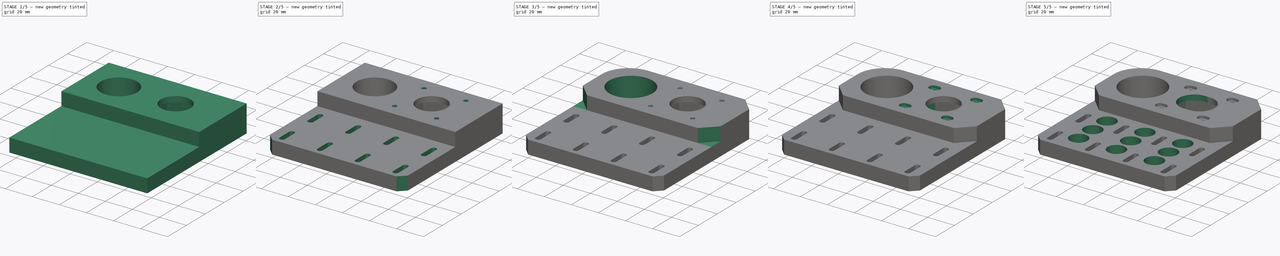
[diagram: build sequence overview — one tinted view per stage of 5, left to right]
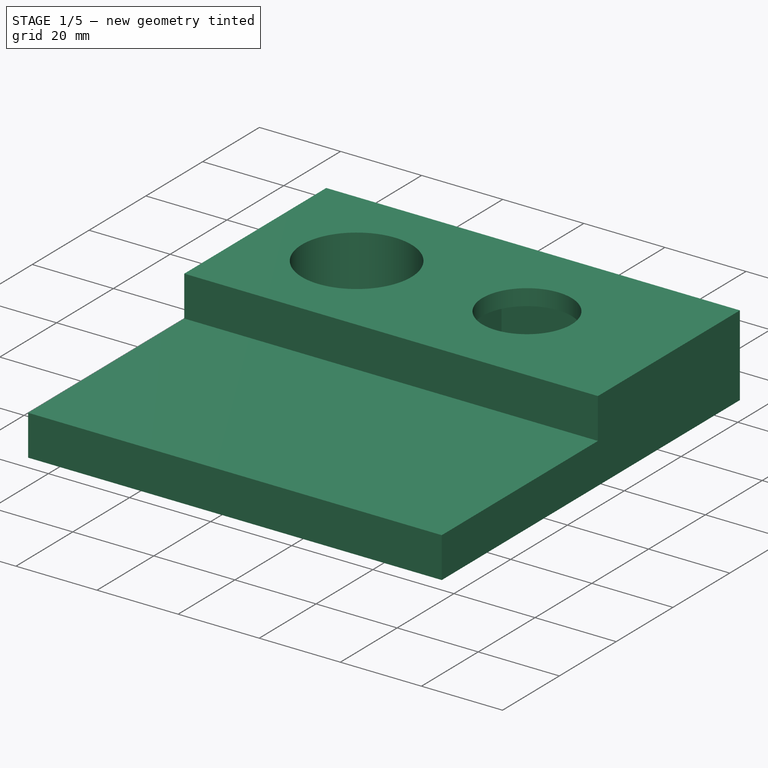
[diagram: stage 1 of 5 — iso view after this stage's code; geometry added in this stage tinted green]
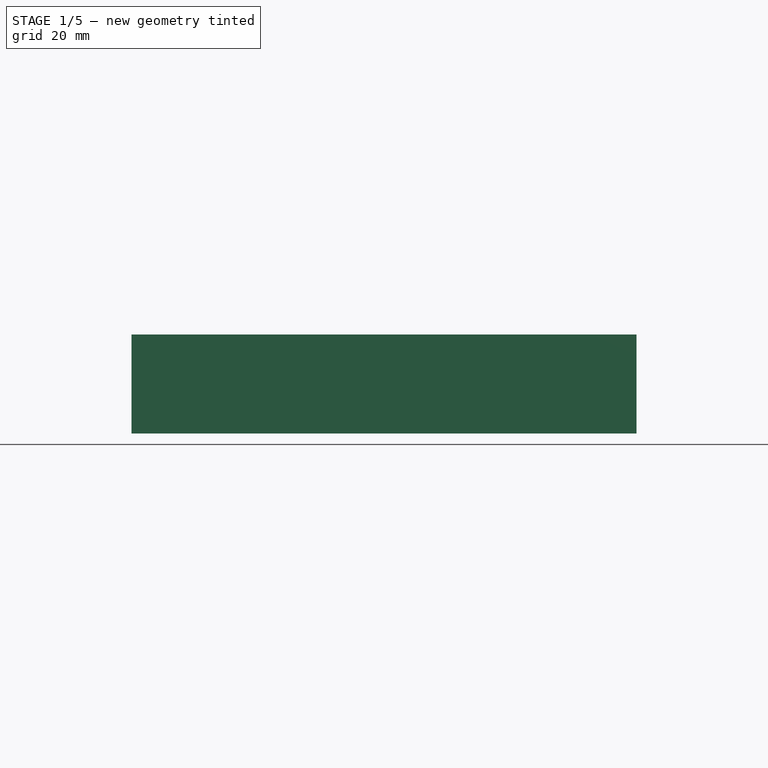
[diagram: stage 1 of 5 — front view after this stage's code; geometry added in this stage tinted green]
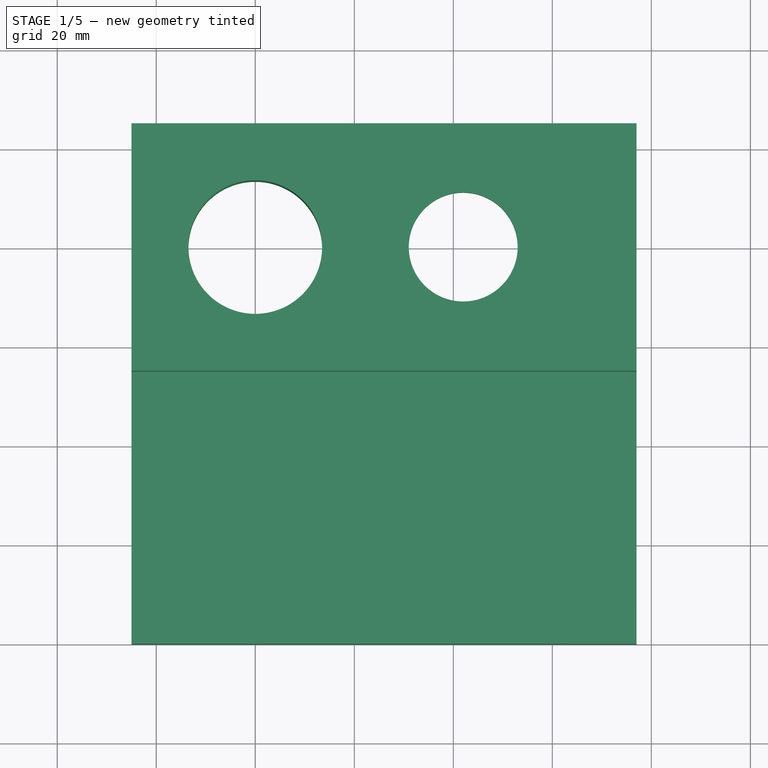
[diagram: stage 1 of 5 — top view after this stage's code; geometry added in this stage tinted green]
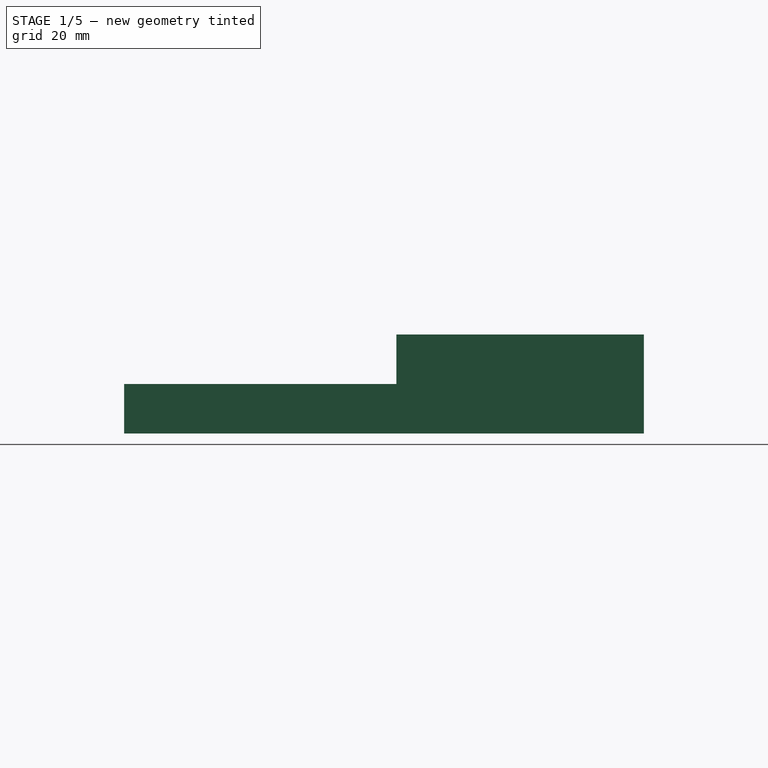
[diagram: stage 1 of 5 — right view after this stage's code; geometry added in this stage tinted green]
FCSTD DOCUMENT  (FreeCAD 2020.12.13R23076 +3015 (Git))
Label: plytaprzekladni
License: All rights reserved
LicenseURL: http://en.wikipedia.org/wiki/All_rights_reserved
objects: Sketcher::SketchObject×12, PartDesign::Pocket×11, PartDesign::LinearPattern×4, PartDesign::MultiTransform×2, PartDesign::Chamfer×2, PartDesign::Pad×1, PartDesign::Fillet×1, PartDesign::Body×1
note: 70 computed .brp shape members not serialized (recipe doc carries the construction recipe); baked Part::Feature solids carry a one-line shape summary decoded from their .brp

FEATURE [Sketcher::SketchObject] Sketch
  MapMode = 5
  Support = -> [XY_Plane]
  sketch-geometry (7):
    g0: LineSegment StartX=-65 StartY=-80 StartZ=0 EndX=37 EndY=-80 EndZ=0
    g1: LineSegment StartX=37 StartY=-80 StartZ=0 EndX=37 EndY=25 EndZ=0
    g2: LineSegment StartX=37 StartY=25 StartZ=0 EndX=-65 EndY=25 EndZ=0
    g3: LineSegment StartX=-65 StartY=25 StartZ=0 EndX=-65 EndY=-80 EndZ=0
    g4: Circle CenterX=2 CenterY=0 CenterZ=0 NormalX=0 NormalY=0 NormalZ=1 AngleXU=0 Radius=11
    g5: Circle CenterX=-40 CenterY=-4e-15 CenterZ=0 NormalX=0 NormalY=0 NormalZ=1 AngleXU=0 Radius=13.5
    g6: LineSegment [constr] StartX=2 StartY=0 StartZ=0 EndX=-40 EndY=-4e-15 EndZ=0
  constraints (20):
    c: Coincident(g0,g1)
    c: Coincident(g1,g2)
    c: Coincident(g2,g3)
    c: Coincident(g3,g0)
    c: Horizontal(g0)
    c: Horizontal(g2)
    c: Vertical(g1)
    c: Vertical(g3)
    c: DistanceX(g0) = -65
    c: DistanceY(g0) = -80
    c: DistanceY(g3,g3) = 105
    c: DistanceX(g2,g2) = 102
    c: Diameter(g4) = 22
    c: Coincident(g6,g4)
    c: Coincident(g6,g5)
    c: Diameter(g5) = 27
    c: Angle(g-1,g6) = 3.14159
    c: DistanceX(g5) = -40
    c: DistanceX(g4) = 2
    c: PointOnObject(g4,g-1)
FEATURE [PartDesign::Pad] Pad
  ClaimChildren = false
  Direction = (1,1,1)
  Fit = 0
  FitJoin = 0
  InnerFit = 0
  InnerFitJoin = 0
  InnerTaperAngle = 0
  InnerTaperAngleRev = 0
  Length = 20
  Length2 = 100
  NewSolid = false
  Profile = -> Sketch
  Suppress = false
  Type = 0
FEATURE [Sketcher::SketchObject] Sketch001
  ExternalGeometry = -> [Pad]
  MapMode = 5
  Placement = pos=(0,0,20) rot=(0,0,1;0rad)
  Support = -> [Pad]
  sketch-geometry (4):
    g0: LineSegment StartX=37 StartY=-80 StartZ=0 EndX=-65 EndY=-80 EndZ=0
    g1: LineSegment StartX=-65 StartY=-80 StartZ=0 EndX=-65 EndY=-25 EndZ=0
    g2: LineSegment StartX=-65 StartY=-25 StartZ=0 EndX=37 EndY=-25 EndZ=0
    g3: LineSegment StartX=37 StartY=-25 StartZ=0 EndX=37 EndY=-80 EndZ=0
  constraints (11):
    c: Coincident(g0,g1)
    c: Coincident(g1,g2)
    c: Coincident(g2,g3)
    c: Coincident(g3,g0)
    c: Horizontal(g0)
    c: Horizontal(g2)
    c: Vertical(g1)
    c: Vertical(g3)
    c: Coincident(g0,g-3)
    c: PointOnObject(g1,g-4)
    c: DistanceY(g2) = -25
FEATURE [PartDesign::Pocket] Pocket
  BaseFeature = -> Pad
  ClaimChildren = false
  Fit = 0
  FitJoin = 0
  InnerFit = 0
  InnerFitJoin = 0
  InnerTaperAngle = 0
  InnerTaperAngleRev = 0
  Length = 10
  Length2 = 100
  NewSolid = false
  Profile = -> Sketch001
  Suppress = false
  Type = 0
FEATURE [Sketcher::SketchObject] Sketch002
  MapMode = 5
  Placement = pos=(0,0,0) rot=(1,0,0;3.14159rad)
  Support = -> [Pocket]
  sketch-geometry (5):
    g0: LineSegment StartX=23 StartY=21 StartZ=0 EndX=-19 EndY=21 EndZ=0
    g1: LineSegment StartX=-19 StartY=21 StartZ=0 EndX=-19 EndY=-21 EndZ=0
    g2: LineSegment StartX=-19 StartY=-21 StartZ=0 EndX=23 EndY=-21 EndZ=0
    g3: LineSegment StartX=23 StartY=-21 StartZ=0 EndX=23 EndY=21 EndZ=0
    g4: Circle [constr] CenterX=2 CenterY=0 CenterZ=0 NormalX=0 NormalY=0 NormalZ=1 AngleXU=0 Radius=29.6985
  constraints (15):
    c: Coincident(g0,g1)
    c: Coincident(g1,g2)
    c: Coincident(g2,g3)
    c: Coincident(g3,g0)
    c: Equal(g0,g1)
    c: Equal(g0,g2)
    c: Equal(g0,g3)
    c: PointOnObject(g0,g4)
    c: PointOnObject(g1,g4)
    c: PointOnObject(g2,g4)
    c: PointOnObject(g3,g4)
    c: Horizontal(g0)
    c: DistanceX(g0,g0) = 42
    c: PointOnObject(g4,g-1)
    c: DistanceX(g-1,g4) = 2
FEATURE [PartDesign::Pocket] Pocket001
  BaseFeature = -> Pocket
  ClaimChildren = false
  Fit = 0
  FitJoin = 0
  InnerFit = 0
  InnerFitJoin = 0
  InnerTaperAngle = 0
  InnerTaperAngleRev = 0
  Length = 16
  Length2 = 100
  NewSolid = false
  Profile = -> Sketch002
  Suppress = false
  Type = 0
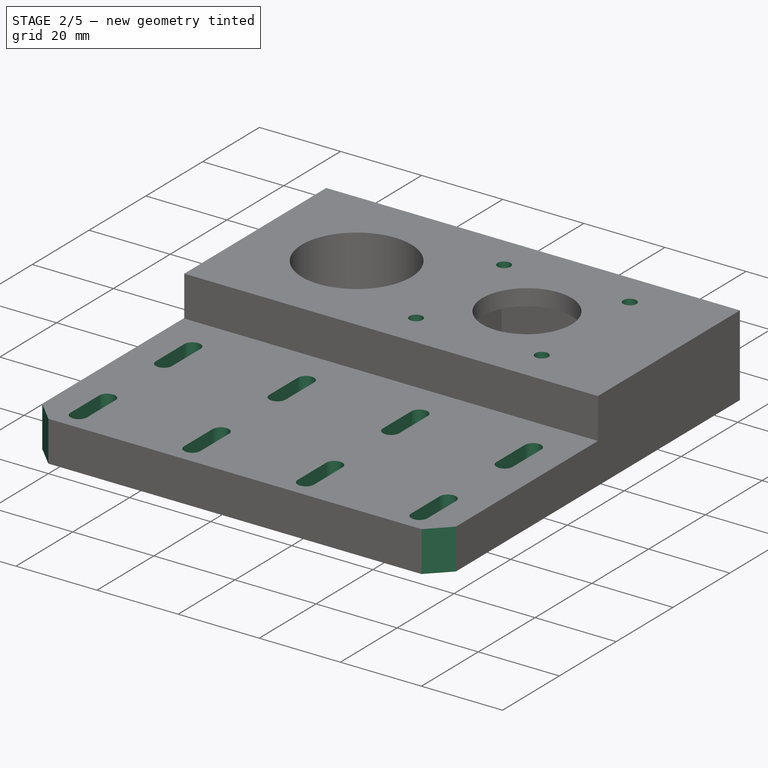
[diagram: stage 2 of 5 — iso view after this stage's code; geometry added in this stage tinted green]
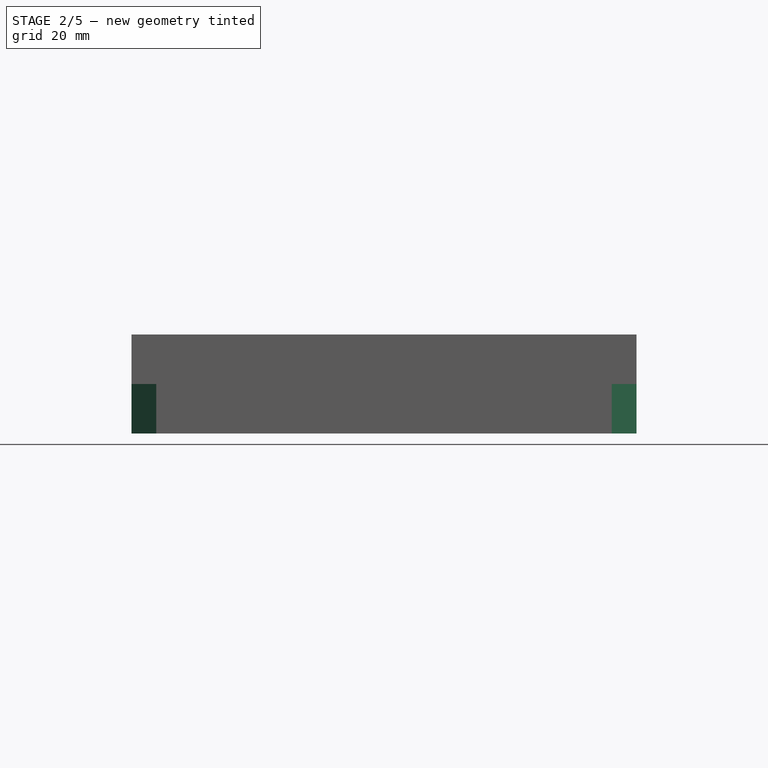
[diagram: stage 2 of 5 — front view after this stage's code; geometry added in this stage tinted green]
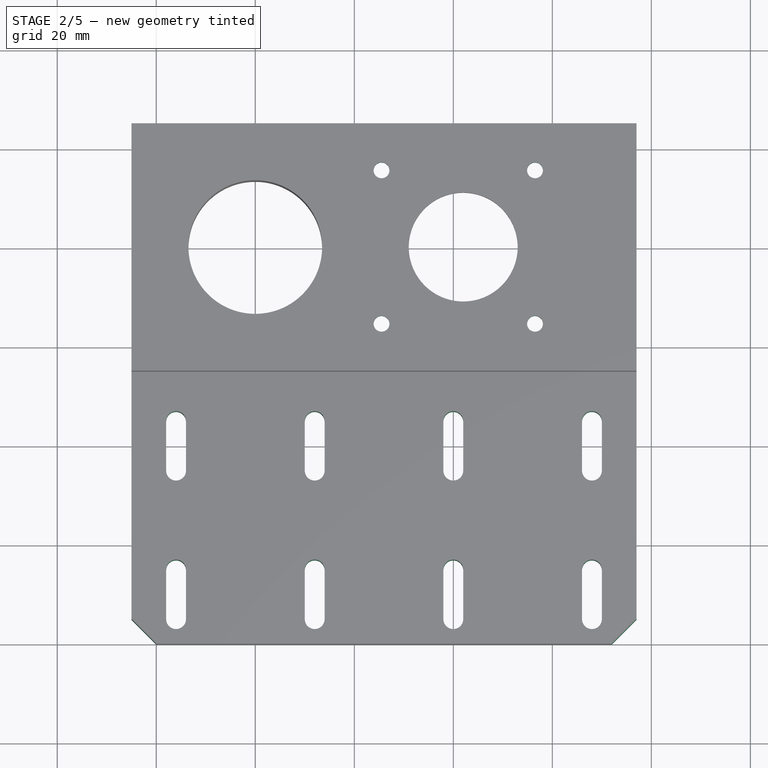
[diagram: stage 2 of 5 — top view after this stage's code; geometry added in this stage tinted green]
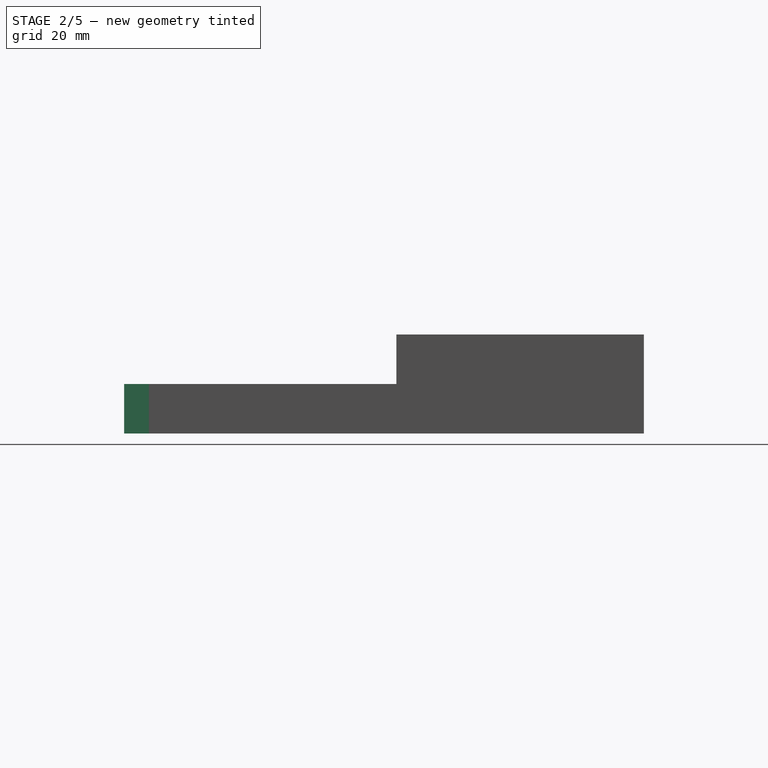
[diagram: stage 2 of 5 — right view after this stage's code; geometry added in this stage tinted green]
FEATURE [Sketcher::SketchObject] Sketch003
  MapMode = 5
  Placement = pos=(0,0,0) rot=(1,0,0;3.14159rad)
  Support = -> [Pocket001]
  sketch-geometry (4):
    g0: ArcOfCircle CenterX=28 CenterY=35 CenterZ=0 NormalX=0 NormalY=0 NormalZ=1 AngleXU=0 Radius=2 StartAngle=3.14159 EndAngle=6.28319
    g1: ArcOfCircle CenterX=28 CenterY=45 CenterZ=0 NormalX=0 NormalY=0 NormalZ=1 AngleXU=0 Radius=2 StartAngle=0 EndAngle=3.14159
    g2: LineSegment StartX=30 StartY=35 StartZ=0 EndX=30 EndY=45 EndZ=0
    g3: LineSegment StartX=26 StartY=35 StartZ=0 EndX=26 EndY=45 EndZ=0
  constraints (10):
    c: Tangent(g0,g3) = 1.5708
    c: Tangent(g0,g2) = -1.5708
    c: Tangent(g2,g1) = -1.5708
    c: Tangent(g3,g1) = 1.5708
    c: Vertical(g2)
    c: Equal(g0,g1)
    c: Radius(g0) = 2
    c: DistanceY(g2,g2) = 10
    c: DistanceX(g0) = 28
    c: DistanceY(g0) = 35
FEATURE [PartDesign::Pocket] Pocket002
  BaseFeature = -> Pocket001
  ClaimChildren = false
  Fit = 0
  FitJoin = 0
  InnerFit = 0
  InnerFitJoin = 0
  InnerTaperAngle = 0
  InnerTaperAngleRev = 0
  Length = 5
  Length2 = 100
  NewSolid = false
  Profile = -> Sketch003
  Suppress = false
  Type = 1
FEATURE [PartDesign::LinearPattern] LinearPattern
  CopyShape = false
  Direction = -> Sketch003 [H_Axis]
  Length = 84
  NewSolid = false
  Occurrences = 4
  Reversed = true
  SubTransform = true
  Suppress = false
FEATURE [PartDesign::LinearPattern] LinearPattern001
  CopyShape = false
  Direction = -> Sketch003 [V_Axis]
  Length = 30
  NewSolid = false
  Occurrences = 2
  SubTransform = true
  Suppress = false
FEATURE [PartDesign::MultiTransform] MultiTransform
  BaseFeature = -> Pocket002
  CopyShape = false
  NewSolid = false
  OriginalSubs = -> [Pocket002]
  Originals = -> [Pocket002]
  SubTransform = true
  Suppress = false
  Transformations = -> [LinearPattern,LinearPattern001]
FEATURE [Sketcher::SketchObject] Sketch004
  MapMode = 5
  Placement = pos=(0,0,16) rot=(1,0,0;3.14159rad)
  Support = -> [MultiTransform]
  sketch-geometry (4):
    g0: Circle CenterX=16.5 CenterY=15.5 CenterZ=0 NormalX=0 NormalY=0 NormalZ=1 AngleXU=0 Radius=1.6
    g1: Circle CenterX=16.5 CenterY=-15.5 CenterZ=0 NormalX=0 NormalY=0 NormalZ=1 AngleXU=0 Radius=1.6
    g2: Circle CenterX=-14.5 CenterY=-15.5 CenterZ=0 NormalX=0 NormalY=0 NormalZ=1 AngleXU=0 Radius=1.6
    g3: Circle CenterX=-14.5 CenterY=15.5 CenterZ=0 NormalX=0 NormalY=0 NormalZ=1 AngleXU=0 Radius=1.6
  constraints (11):
    c: Equal(g0,g3)
    c: Equal(g3,g1)
    c: Equal(g1,g2)
    c: Diameter(g1) = 3.2
    c: DistanceY(g1,g0) = 31
    c: Vertical(g2,g3)
    c: Horizontal(g3,g0)
    c: Horizontal(g2,g1)
    c: DistanceX(g1) = 16.5
    c: DistanceX(g2,g1) = 31
    c: Symmetric(g0,g1,g-1)
FEATURE [PartDesign::Pocket] Pocket003
  BaseFeature = -> MultiTransform
  ClaimChildren = false
  Fit = 0
  FitJoin = 0
  InnerFit = 0
  InnerFitJoin = 0
  InnerTaperAngle = 0
  InnerTaperAngleRev = 0
  Length = 5
  Length2 = 100
  NewSolid = false
  Profile = -> Sketch004
  Suppress = false
  Type = 1
FEATURE [PartDesign::Chamfer] Chamfer
  Angle = 45
  Base = -> Pocket003 [Edge4,Edge2]
  BaseFeature = -> Pocket003
  ChamferType = 0
  FlipDirection = false
  NewSolid = false
  Size = 5
  Size2 = 1
  SupportTransform = true
  Suppress = false
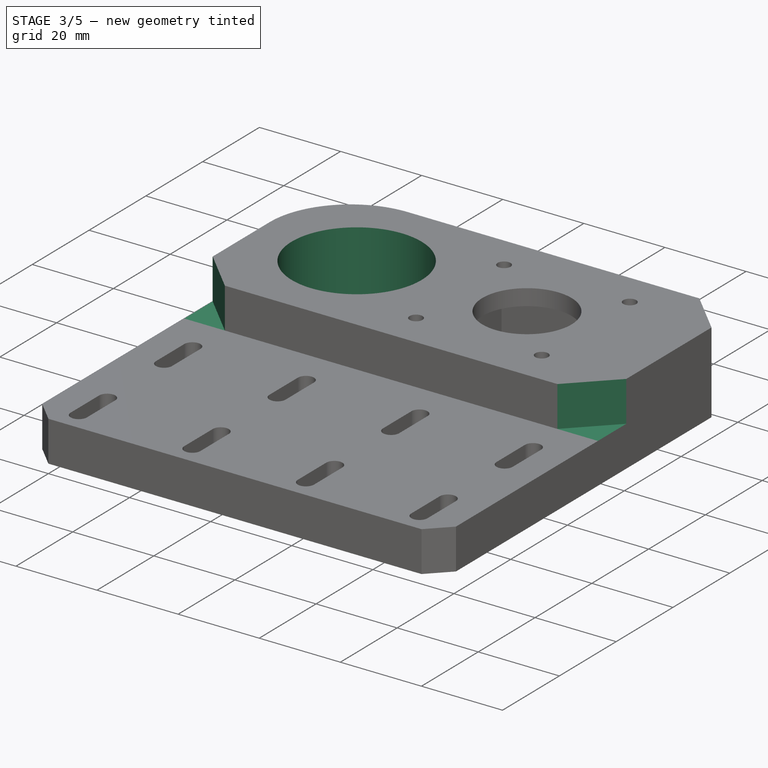
[diagram: stage 3 of 5 — iso view after this stage's code; geometry added in this stage tinted green]
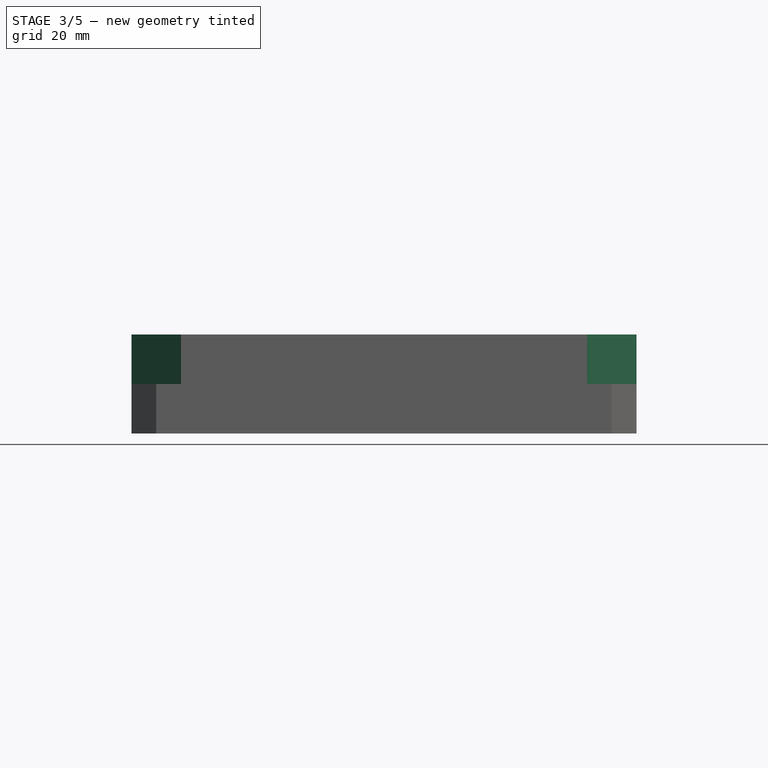
[diagram: stage 3 of 5 — front view after this stage's code; geometry added in this stage tinted green]
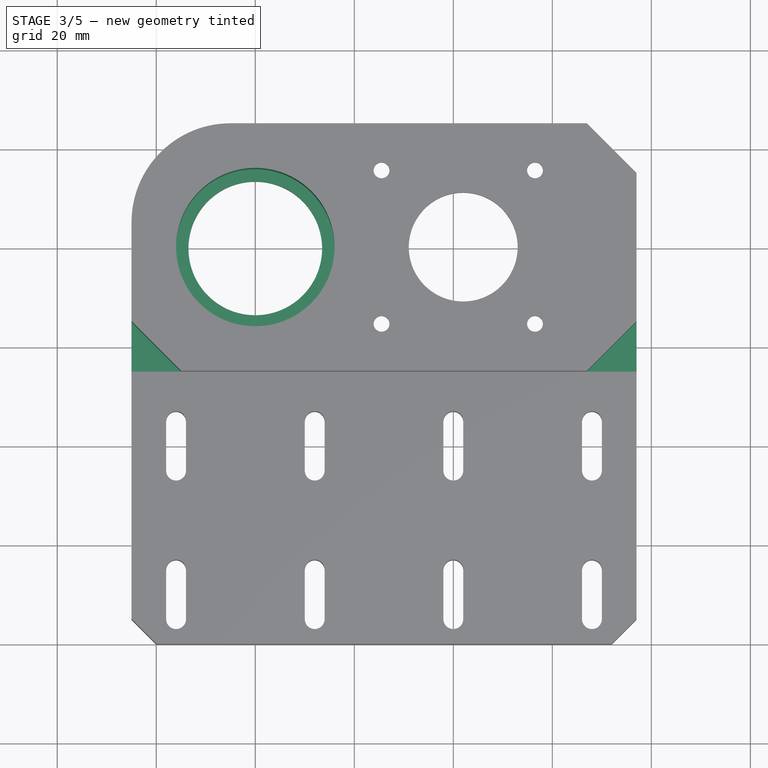
[diagram: stage 3 of 5 — top view after this stage's code; geometry added in this stage tinted green]
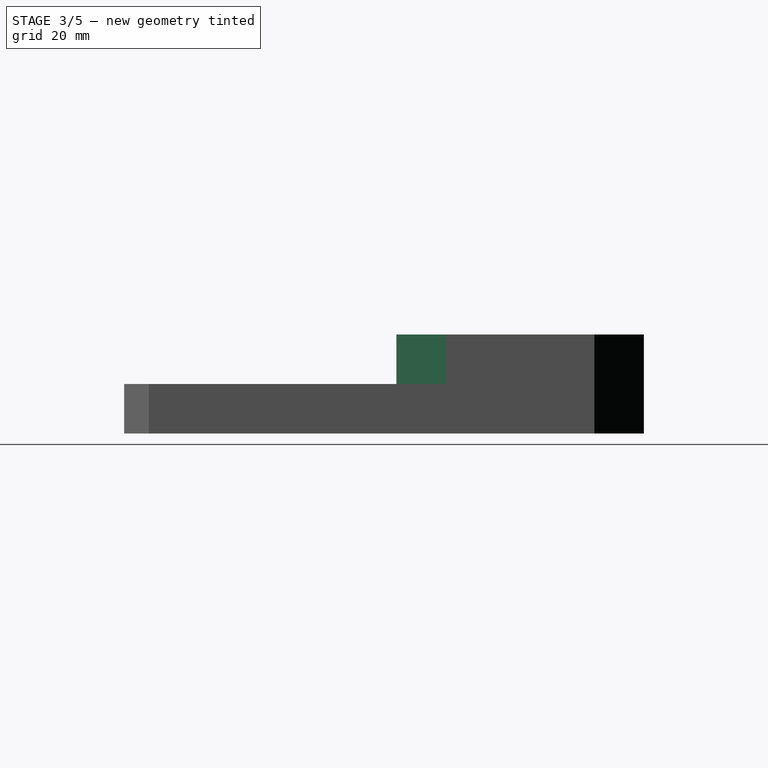
[diagram: stage 3 of 5 — right view after this stage's code; geometry added in this stage tinted green]
FEATURE [PartDesign::Chamfer] Chamfer001
  Angle = 45
  Base = -> Chamfer [Edge91,Edge89,Edge88]
  BaseFeature = -> Chamfer
  ChamferType = 0
  FlipDirection = false
  NewSolid = false
  Size = 10
  Size2 = 1
  SupportTransform = true
  Suppress = false
FEATURE [PartDesign::Fillet] Fillet
  Base = -> Chamfer001 [Edge55]
  BaseFeature = -> Chamfer001
  NewSolid = false
  Radius = 20
  SupportTransform = true
  Suppress = false
FEATURE [Sketcher::SketchObject] Sketch006
  ExternalGeometry = -> [Fillet]
  MapMode = 5
  Placement = pos=(0,0,20) rot=(0,0,1;0rad)
  Support = -> [Fillet]
  sketch-geometry (1):
    g0: Circle CenterX=-40 CenterY=-4.25258e-11 CenterZ=0 NormalX=0 NormalY=0 NormalZ=1 AngleXU=0 Radius=16
  constraints (2):
    c: Coincident(g0,g-3)
    c: Diameter(g0) = 32
FEATURE [PartDesign::Pocket] Pocket004
  BaseFeature = -> Fillet
  ClaimChildren = false
  Fit = 0
  FitJoin = 0
  InnerFit = 0
  InnerFitJoin = 0
  InnerTaperAngle = 0
  InnerTaperAngleRev = 0
  Length = 16
  Length2 = 100
  NewSolid = false
  Profile = -> Sketch006
  Suppress = false
  Type = 0
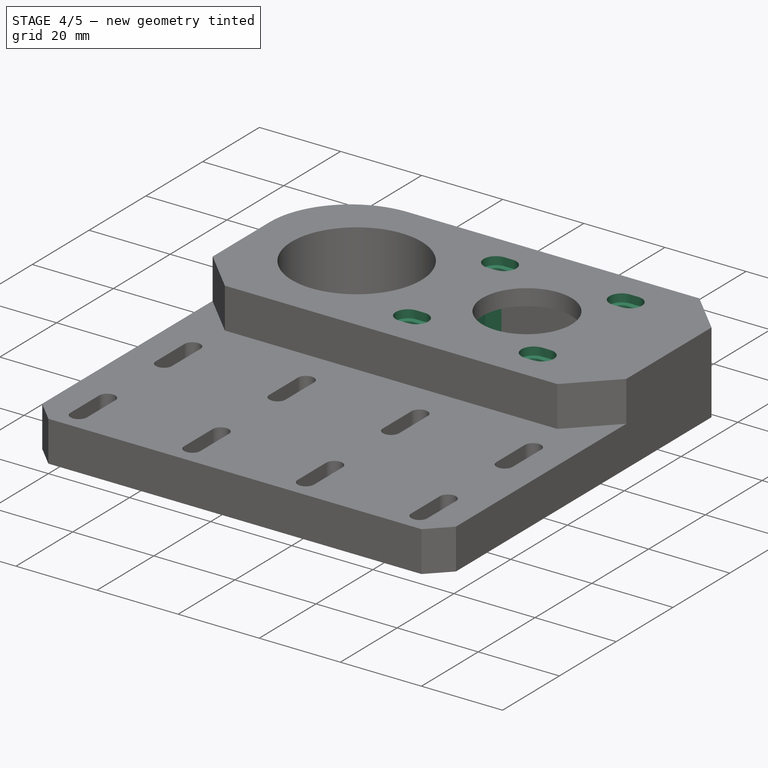
[diagram: stage 4 of 5 — iso view after this stage's code; geometry added in this stage tinted green]
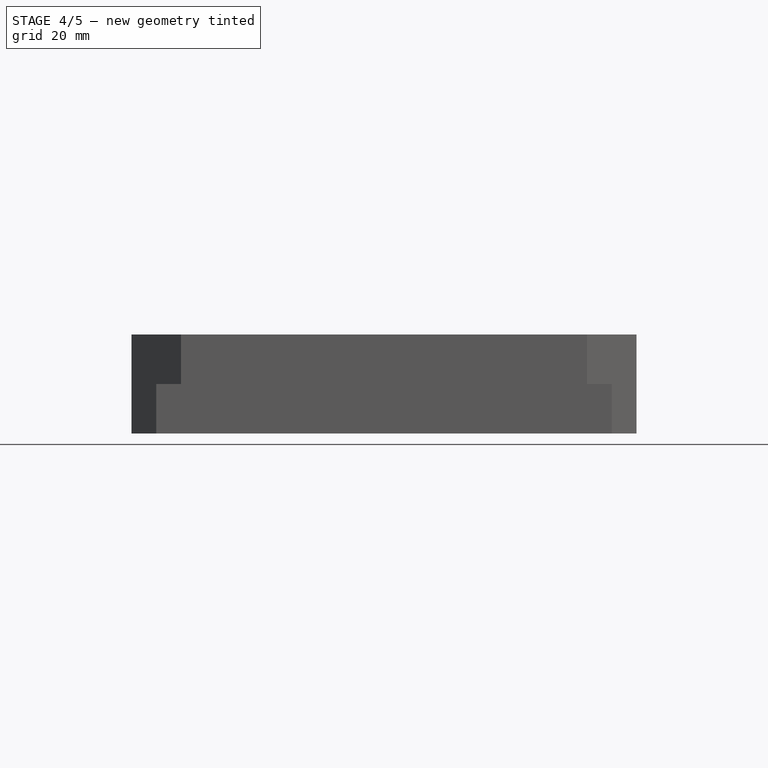
[diagram: stage 4 of 5 — front view after this stage's code; geometry added in this stage tinted green]
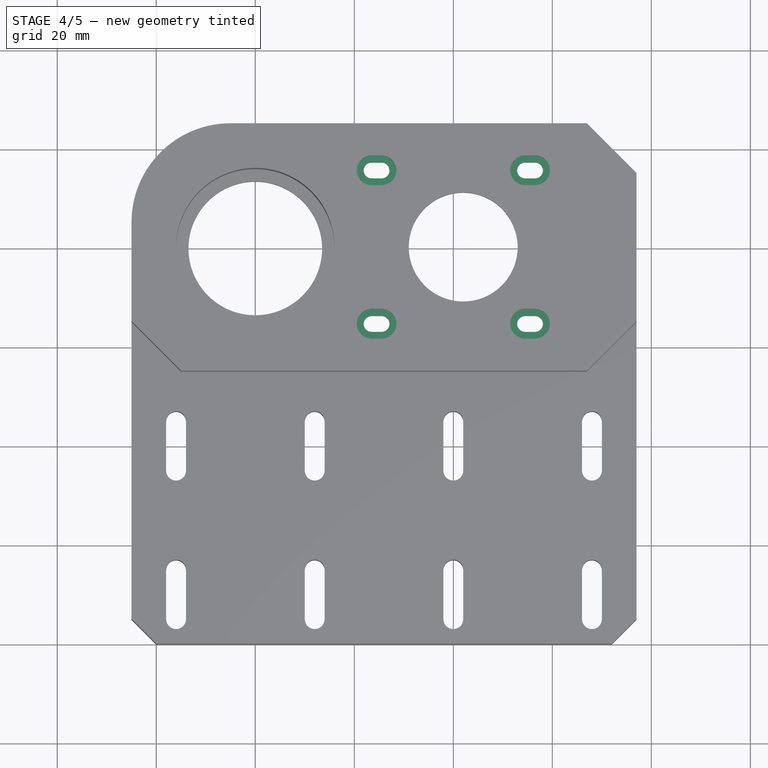
[diagram: stage 4 of 5 — top view after this stage's code; geometry added in this stage tinted green]
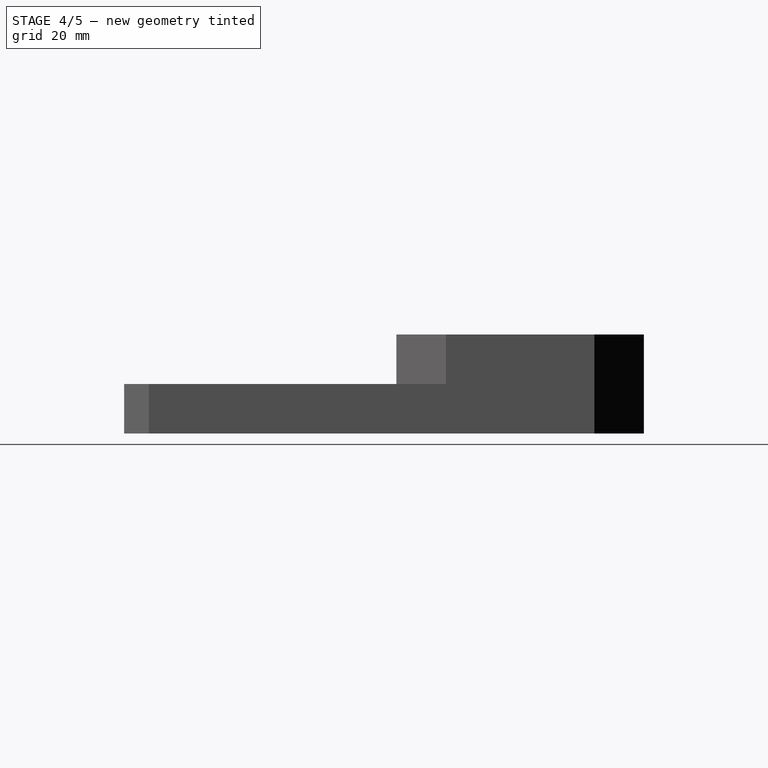
[diagram: stage 4 of 5 — right view after this stage's code; geometry added in this stage tinted green]
FEATURE [Sketcher::SketchObject] Sketch007
  ExternalGeometry = -> [Pocket004]
  MapMode = 5
  Placement = pos=(0,0,20) rot=(0,0,1;0rad)
  Support = -> [Pocket004]
  sketch-geometry (4):
    g0: Circle CenterX=16.5 CenterY=15.5 CenterZ=0 NormalX=0 NormalY=0 NormalZ=1 AngleXU=0 Radius=3
    g1: Circle CenterX=-14.5 CenterY=15.5 CenterZ=0 NormalX=0 NormalY=0 NormalZ=1 AngleXU=0 Radius=3
    g2: Circle CenterX=-14.5 CenterY=-15.5 CenterZ=0 NormalX=0 NormalY=0 NormalZ=1 AngleXU=0 Radius=3
    g3: Circle CenterX=16.5 CenterY=-15.5 CenterZ=0 NormalX=0 NormalY=0 NormalZ=1 AngleXU=0 Radius=3
  constraints (8):
    c: Diameter(g3) = 6
    c: Equal(g3,g2)
    c: Equal(g3,g1)
    c: Equal(g3,g0)
    c: Coincident(g2,g-6)
    c: Coincident(g3,g-5)
    c: Coincident(g0,g-4)
    c: Coincident(g1,g-3)
FEATURE [PartDesign::Pocket] Pocket005
  BaseFeature = -> Pocket004
  ClaimChildren = false
  Fit = 0
  FitJoin = 0
  InnerFit = 0
  InnerFitJoin = 0
  InnerTaperAngle = 0
  InnerTaperAngleRev = 0
  Length = 2
  Length2 = 100
  NewSolid = false
  Profile = -> Sketch007
  Suppress = false
  Type = 0
FEATURE [Sketcher::SketchObject] Sketch008
  ExternalGeometry = -> [Pocket005]
  MapMode = 5
  Placement = pos=(0,0,16) rot=(1,0,0;3.14159rad)
  Support = -> [Pocket005]
  sketch-geometry (16):
    g0: ArcOfCircle CenterX=-14.5 CenterY=-15.5 CenterZ=0 NormalX=0 NormalY=0 NormalZ=1 AngleXU=0 Radius=1.6 StartAngle=4.71239 EndAngle=7.85398
    g1: ArcOfCircle CenterX=-16.5 CenterY=-15.5 CenterZ=0 NormalX=0 NormalY=0 NormalZ=1 AngleXU=0 Radius=1.6 StartAngle=1.5708 EndAngle=4.71239
    g2: LineSegment StartX=-14.5 StartY=-13.9 StartZ=0 EndX=-16.5 EndY=-13.9 EndZ=0
    g3: LineSegment StartX=-14.5 StartY=-17.1 StartZ=0 EndX=-16.5 EndY=-17.1 EndZ=0
    g4: ArcOfCircle CenterX=-14.5 CenterY=15.5 CenterZ=0 NormalX=0 NormalY=0 NormalZ=1 AngleXU=0 Radius=1.6 StartAngle=4.71239 EndAngle=7.85398
    g5: ArcOfCircle CenterX=-16.5 CenterY=15.5 CenterZ=0 NormalX=0 NormalY=0 NormalZ=1 AngleXU=0 Radius=1.6 StartAngle=1.5708 EndAngle=4.71239
    g6: LineSegment StartX=-14.5 StartY=17.1 StartZ=0 EndX=-16.5 EndY=17.1 EndZ=0
    g7: LineSegment StartX=-14.5 StartY=13.9 StartZ=0 EndX=-16.5 EndY=13.9 EndZ=0
    g8: ArcOfCircle CenterX=16.5 CenterY=15.5 CenterZ=0 NormalX=0 NormalY=0 NormalZ=1 AngleXU=0 Radius=1.6 StartAngle=4.71239 EndAngle=7.85398
    g9: ArcOfCircle CenterX=14.5 CenterY=15.5 CenterZ=0 NormalX=0 NormalY=0 NormalZ=1 AngleXU=0 Radius=1.6 StartAngle=1.5708 EndAngle=4.71239
    g10: LineSegment StartX=16.5 StartY=17.1 StartZ=0 EndX=14.5 EndY=17.1 EndZ=0
    g11: LineSegment StartX=16.5 StartY=13.9 StartZ=0 EndX=14.5 EndY=13.9 EndZ=0
    g12: ArcOfCircle CenterX=16.5 CenterY=-15.5 CenterZ=0 NormalX=0 NormalY=0 NormalZ=1 AngleXU=0 Radius=1.6 StartAngle=4.71239 EndAngle=7.85398
    g13: ArcOfCircle CenterX=14.5 CenterY=-15.5 CenterZ=0 NormalX=0 NormalY=0 NormalZ=1 AngleXU=0 Radius=1.6 StartAngle=1.5708 EndAngle=4.71239
    g14: LineSegment StartX=16.5 StartY=-13.9 StartZ=0 EndX=14.5 EndY=-13.9 EndZ=0
    g15: LineSegment StartX=16.5 StartY=-17.1 StartZ=0 EndX=14.5 EndY=-17.1 EndZ=0
  constraints (36):
    c: Tangent(g0,g3) = 1.5708
    c: Tangent(g0,g2) = -1.5708
    c: Tangent(g2,g1) = -1.5708
    c: Tangent(g3,g1) = 1.5708
    c: Horizontal(g2)
    c: Equal(g0,g1)
    c: Coincident(g0,g-4)
    c: Tangent(g4,g7) = 1.5708
    c: Tangent(g4,g6) = -1.5708
    c: Tangent(g6,g5) = -1.5708
    c: Tangent(g7,g5) = 1.5708
    c: Horizontal(g6)
    c: Equal(g4,g5)
    c: Coincident(g4,g-3)
    c: Tangent(g8,g11) = 1.5708
    c: Tangent(g8,g10) = -1.5708
    c: Tangent(g10,g9) = -1.5708
    c: Tangent(g11,g9) = 1.5708
    c: Horizontal(g10)
    c: Equal(g8,g9)
    c: Coincident(g8,g-6)
    c: Tangent(g12,g15) = 1.5708
    c: Tangent(g12,g14) = -1.5708
    c: Tangent(g14,g13) = -1.5708
    c: Tangent(g15,g13) = 1.5708
    c: Horizontal(g14)
    c: Equal(g12,g13)
    c: Coincident(g12,g-5)
    c: Equal(g0,g-4)
    c: Equal(g-4,g4)
    c: Equal(g4,g8)
    c: Equal(g8,g12)
    c: Equal(g6,g2)
    c: Equal(g2,g14)
    c: Equal(g14,g10)
    c: DistanceX(g14,g14) = 2
FEATURE [PartDesign::Pocket] Pocket006
  BaseFeature = -> Pocket005
  ClaimChildren = false
  Fit = 0
  FitJoin = 0
  InnerFit = 0
  InnerFitJoin = 0
  InnerTaperAngle = 0
  InnerTaperAngleRev = 0
  Length = 5
  Length2 = 100
  NewSolid = false
  Profile = -> Sketch008
  Suppress = false
  Type = 1
FEATURE [Sketcher::SketchObject] Sketch009
  ExternalGeometry = -> [Pocket006]
  MapMode = 5
  Placement = pos=(0,0,0) rot=(1,0,0;3.14159rad)
  Support = -> [Pocket006]
  sketch-geometry (4):
    g0: LineSegment StartX=-19 StartY=21 StartZ=0 EndX=-23 EndY=21 EndZ=0
    g1: LineSegment StartX=-23 StartY=21 StartZ=0 EndX=-23 EndY=-21 EndZ=0
    g2: LineSegment StartX=-23 StartY=-21 StartZ=0 EndX=-19 EndY=-21 EndZ=0
    g3: LineSegment StartX=-19 StartY=-21 StartZ=0 EndX=-19 EndY=21 EndZ=0
  constraints (10):
    c: Coincident(g0,g1)
    c: Coincident(g1,g2)
    c: Coincident(g2,g3)
    c: Coincident(g3,g0)
    c: Horizontal(g0)
    c: Horizontal(g2)
    c: Vertical(g1)
    c: Coincident(g0,g-3)
    c: Coincident(g2,g-3)
    c: DistanceX(g2,g2) = 4
FEATURE [PartDesign::Pocket] Pocket007
  BaseFeature = -> Pocket006
  ClaimChildren = false
  Fit = 0
  FitJoin = 0
  InnerFit = 0
  InnerFitJoin = 0
  InnerTaperAngle = 0
  InnerTaperAngleRev = 0
  Length = 0
  Length2 = 100
  NewSolid = false
  Profile = -> Sketch009
  Suppress = false
  Type = 3
  UpToFace = -> Pocket006 [Face52]
FEATURE [Sketcher::SketchObject] Sketch010
  ExternalGeometry = -> [Pocket007]
  MapMode = 5
  Placement = pos=(0,0,20) rot=(0,0,1;0rad)
  Support = -> [Pocket007]
  sketch-geometry (16):
    g0: ArcOfCircle CenterX=-14.5 CenterY=15.5 CenterZ=0 NormalX=0 NormalY=0 NormalZ=1 AngleXU=0 Radius=3 StartAngle=4.71239 EndAngle=7.85398
    g1: ArcOfCircle CenterX=-16.5 CenterY=15.5 CenterZ=0 NormalX=0 NormalY=0 NormalZ=1 AngleXU=0 Radius=3 StartAngle=1.5708 EndAngle=4.71239
    g2: LineSegment StartX=-14.5 StartY=18.5 StartZ=0 EndX=-16.5 EndY=18.5 EndZ=0
    g3: LineSegment StartX=-14.5 StartY=12.5 StartZ=0 EndX=-16.5 EndY=12.5 EndZ=0
    g4: ArcOfCircle CenterX=16.5 CenterY=15.5 CenterZ=0 NormalX=0 NormalY=0 NormalZ=1 AngleXU=0 Radius=3 StartAngle=4.71239 EndAngle=7.85398
    g5: ArcOfCircle CenterX=14.5 CenterY=15.5 CenterZ=0 NormalX=0 NormalY=0 NormalZ=1 AngleXU=0 Radius=3 StartAngle=1.5708 EndAngle=4.71239
    g6: LineSegment StartX=16.5 StartY=18.5 StartZ=0 EndX=14.5 EndY=18.5 EndZ=0
    g7: LineSegment StartX=16.5 StartY=12.5 StartZ=0 EndX=14.5 EndY=12.5 EndZ=0
    g8: ArcOfCircle CenterX=16.5 CenterY=-15.5 CenterZ=0 NormalX=0 NormalY=0 NormalZ=1 AngleXU=0 Radius=3 StartAngle=4.71239 EndAngle=7.85398
    g9: ArcOfCircle CenterX=14.5 CenterY=-15.5 CenterZ=0 NormalX=0 NormalY=0 NormalZ=1 AngleXU=0 Radius=3 StartAngle=1.5708 EndAngle=4.71239
    g10: LineSegment StartX=16.5 StartY=-12.5 StartZ=0 EndX=14.5 EndY=-12.5 EndZ=0
    g11: LineSegment StartX=16.5 StartY=-18.5 StartZ=0 EndX=14.5 EndY=-18.5 EndZ=0
    g12: ArcOfCircle CenterX=-14.5 CenterY=-15.5 CenterZ=0 NormalX=0 NormalY=0 NormalZ=1 AngleXU=0 Radius=3 StartAngle=4.71239 EndAngle=7.85398
    g13: ArcOfCircle CenterX=-16.5 CenterY=-15.5 CenterZ=0 NormalX=0 NormalY=0 NormalZ=1 AngleXU=0 Radius=3 StartAngle=1.5708 EndAngle=4.71239
    g14: LineSegment StartX=-14.5 StartY=-12.5 StartZ=0 EndX=-16.5 EndY=-12.5 EndZ=0
    g15: LineSegment StartX=-14.5 StartY=-18.5 StartZ=0 EndX=-16.5 EndY=-18.5 EndZ=0
  constraints (36):
    c: Tangent(g0,g3) = 1.5708
    c: Tangent(g0,g2) = -1.5708
    c: Tangent(g2,g1) = -1.5708
    c: Tangent(g3,g1) = 1.5708
    c: Horizontal(g2)
    c: Equal(g0,g1)
    c: Coincident(g0,g-3)
    c: Tangent(g4,g7) = 1.5708
    c: Tangent(g4,g6) = -1.5708
    c: Tangent(g6,g5) = -1.5708
    c: Tangent(g7,g5) = 1.5708
    c: Horizontal(g6)
    c: Equal(g4,g5)
    c: Coincident(g4,g-4)
    c: Tangent(g8,g11) = 1.5708
    c: Tangent(g8,g10) = -1.5708
    c: Tangent(g10,g9) = -1.5708
    c: Tangent(g11,g9) = 1.5708
    c: Horizontal(g10)
    c: Equal(g8,g9)
    c: Coincident(g8,g-6)
    c: Tangent(g12,g15) = 1.5708
    c: Tangent(g12,g14) = -1.5708
    c: Tangent(g14,g13) = -1.5708
    c: Tangent(g15,g13) = 1.5708
    c: Horizontal(g14)
    c: Equal(g12,g13)
    c: Coincident(g12,g-5)
    c: Equal(g12,g0)
    c: Equal(g0,g4)
    c: Equal(g4,g8)
    c: Equal(g8,g-4)
    c: Equal(g10,g14)
    c: Equal(g14,g3)
    c: Equal(g3,g7)
    c: DistanceX(g10,g10) = 2
FEATURE [PartDesign::Pocket] Pocket008
  BaseFeature = -> Pocket007
  ClaimChildren = false
  Fit = 0
  FitJoin = 0
  InnerFit = 0
  InnerFitJoin = 0
  InnerTaperAngle = 0
  InnerTaperAngleRev = 0
  Length = 0
  Length2 = 100
  NewSolid = false
  Profile = -> Sketch010
  Suppress = false
  Type = 3
  UpToFace = -> Pocket007 [Face89]
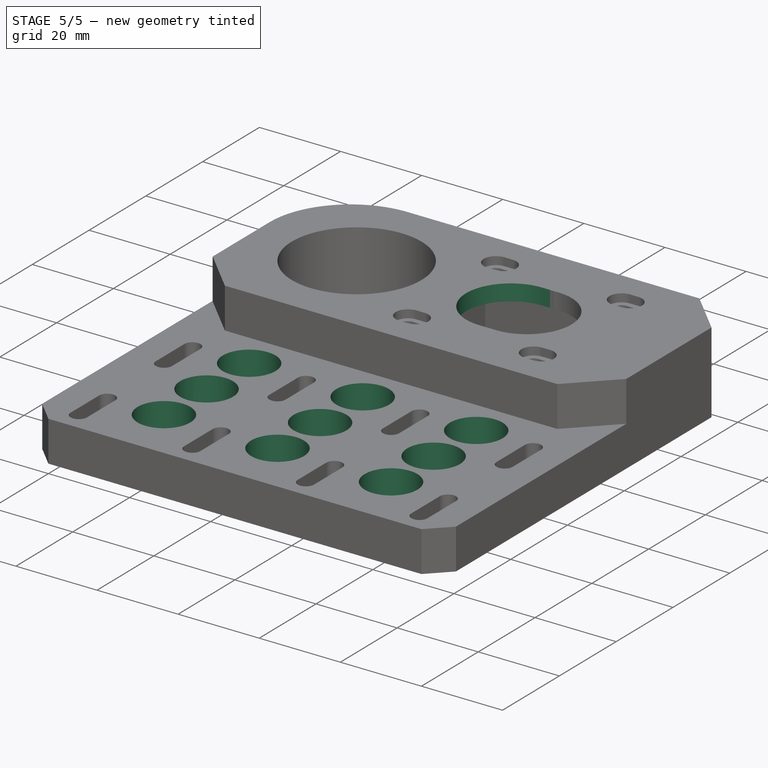
[diagram: stage 5 of 5 — iso view after this stage's code; geometry added in this stage tinted green]
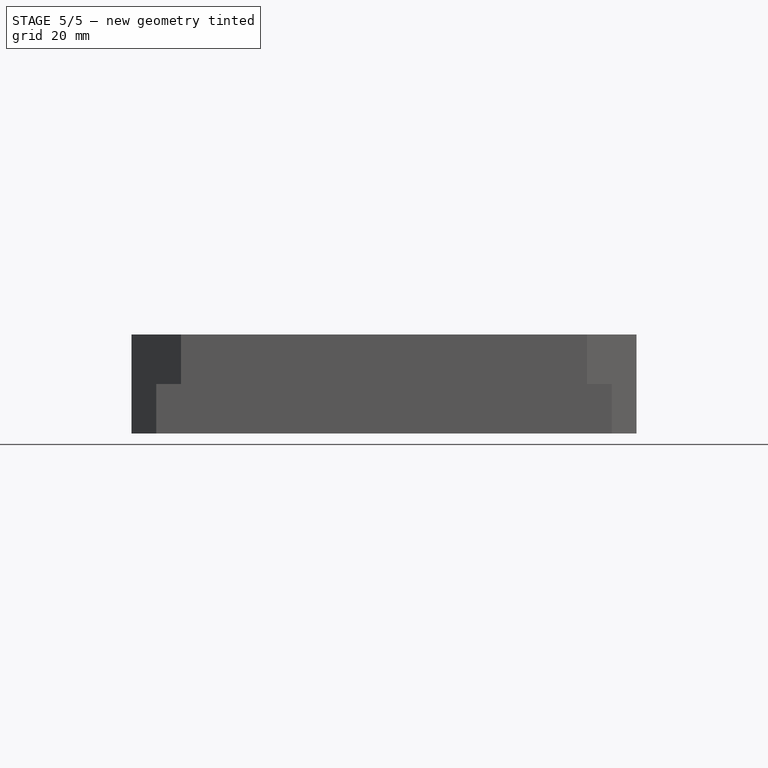
[diagram: stage 5 of 5 — front view after this stage's code; geometry added in this stage tinted green]
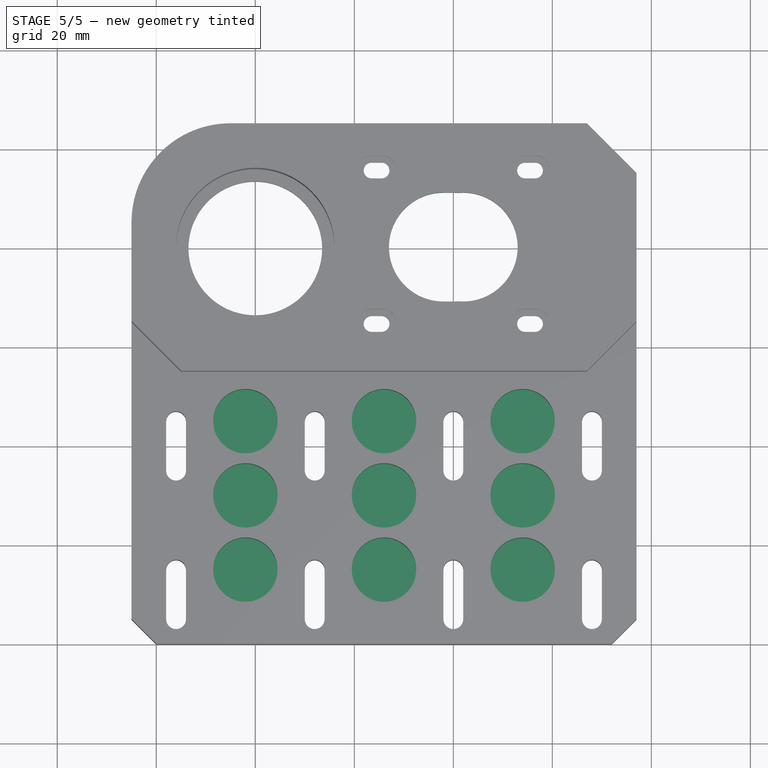
[diagram: stage 5 of 5 — top view after this stage's code; geometry added in this stage tinted green]
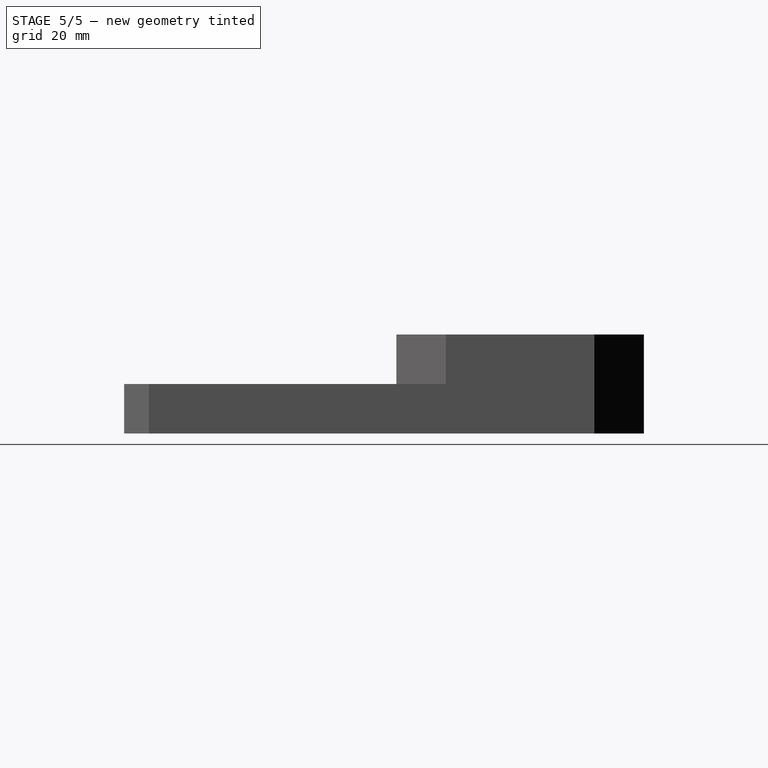
[diagram: stage 5 of 5 — right view after this stage's code; geometry added in this stage tinted green]
FEATURE [Sketcher::SketchObject] Sketch011
  ExternalGeometry = -> [Pocket008]
  MapMode = 5
  Placement = pos=(0,0,20) rot=(0,0,1;0rad)
  Support = -> [Pocket008]
  sketch-geometry (4):
    g0: ArcOfCircle CenterX=0 CenterY=0 CenterZ=0 NormalX=0 NormalY=0 NormalZ=1 AngleXU=0 Radius=11 StartAngle=4.71239 EndAngle=7.85398
    g1: ArcOfCircle CenterX=-2 CenterY=9e-16 CenterZ=0 NormalX=0 NormalY=0 NormalZ=1 AngleXU=0 Radius=11 StartAngle=1.5708 EndAngle=4.71239
    g2: LineSegment StartX=-5.828e-13 StartY=11 StartZ=0 EndX=-2 EndY=11 EndZ=0
    g3: LineSegment StartX=-2e-15 StartY=-11 StartZ=0 EndX=-2 EndY=-11 EndZ=0
  constraints (9):
    c: Tangent(g0,g3) = 1.5708
    c: Tangent(g0,g2) = -1.5708
    c: Tangent(g2,g1) = -1.5708
    c: Tangent(g3,g1) = 1.5708
    c: Horizontal(g2)
    c: Equal(g0,g1)
    c: Coincident(g0,g-1)
    c: Equal(g0,g-3)
    c: DistanceX(g2,g2) = 2
FEATURE [PartDesign::Pocket] Pocket009
  BaseFeature = -> Pocket008
  ClaimChildren = false
  Fit = 0
  FitJoin = 0
  InnerFit = 0
  InnerFitJoin = 0
  InnerTaperAngle = 0
  InnerTaperAngleRev = 0
  Length = 5
  Length2 = 100
  NewSolid = false
  Profile = -> Sketch011
  Suppress = false
  Type = 1
FEATURE [Sketcher::SketchObject] Sketch012
  MapMode = 5
  Placement = pos=(0,0,10) rot=(0,0,1;0rad)
  Support = -> [Pocket009]
  sketch-geometry (1):
    g0: Circle CenterX=14 CenterY=-65 CenterZ=0 NormalX=0 NormalY=0 NormalZ=1 AngleXU=0 Radius=6.5
  constraints (3):
    c: Diameter(g0) = 13
    c: DistanceX(g0) = 14
    c: DistanceY(g0) = -65
FEATURE [PartDesign::Pocket] Pocket010
  BaseFeature = -> Pocket009
  ClaimChildren = false
  Fit = 0
  FitJoin = 0
  InnerFit = 0
  InnerFitJoin = 0
  InnerTaperAngle = 0
  InnerTaperAngleRev = 0
  Length = 8
  Length2 = 100
  NewSolid = false
  Profile = -> Sketch012
  Suppress = false
  Type = 0
FEATURE [PartDesign::LinearPattern] LinearPattern002
  CopyShape = false
  Direction = -> Sketch012 [H_Axis]
  Length = 56
  NewSolid = false
  Occurrences = 3
  Reversed = true
  SubTransform = true
  Suppress = false
FEATURE [PartDesign::LinearPattern] LinearPattern003
  CopyShape = false
  Direction = -> Sketch012 [V_Axis]
  Length = 30
  NewSolid = false
  Occurrences = 3
  SubTransform = true
  Suppress = false
FEATURE [PartDesign::MultiTransform] MultiTransform001
  BaseFeature = -> Pocket010
  CopyShape = false
  NewSolid = false
  OriginalSubs = -> [Pocket010]
  Originals = -> [Pocket010]
  Refine = true
  SubTransform = true
  Suppress = false
  Transformations = -> [LinearPattern002,LinearPattern003]
FEATURE [PartDesign::Body] Body  label="plyta-przekadni"
  ExportMode = 0
  Group = -> [Sketch,Pad,Sketch001,Pocket,Sketch002,Pocket001,Sketch003,Pocket002,MultiTransform,LinearPattern,LinearPattern001,Sketch004,Pocket003,Chamfer,Chamfer001,Fillet,Sketch006,Pocket004,Sketch007,Pocket005,Sketch008,Pocket006,Sketch009,Pocket007,Sketch010,Pocket008,Sketch011,Pocket009,Sketch012,Pocket010,MultiTransform001,LinearPattern002,LinearPattern003]
  Origin = -> Origin
  Tip = -> MultiTransform001
  _ExportChildren = -> [Pad,Pocket,Pocket001,Pocket002,MultiTransform,LinearPattern,LinearPattern001,Pocket003,Chamfer,Chamfer001,Fillet,Pocket004,Pocket005,Pocket006,Pocket007,Pocket008,Pocket009,Pocket010,MultiTransform001,LinearPattern002,LinearPattern003]
  _GroupVersion = 1
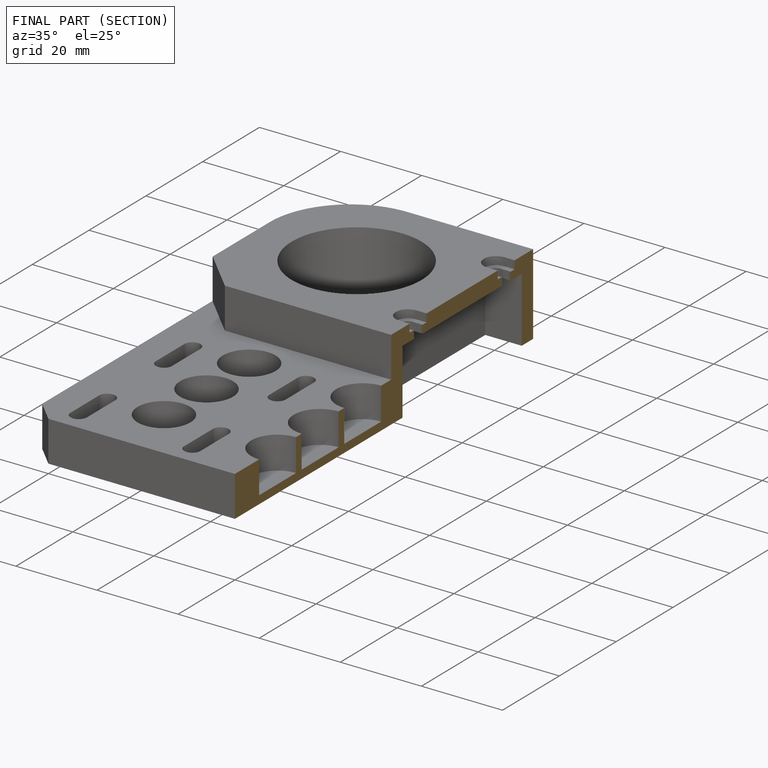
[diagram: finished part — half-section view (interior)]
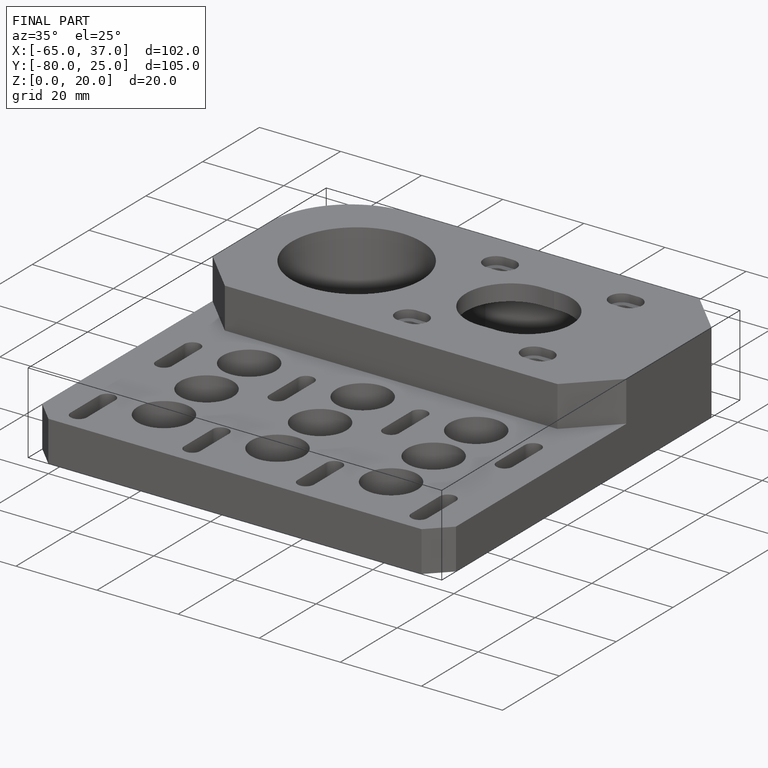
[diagram: finished part — iso view with bounding-box wireframe]
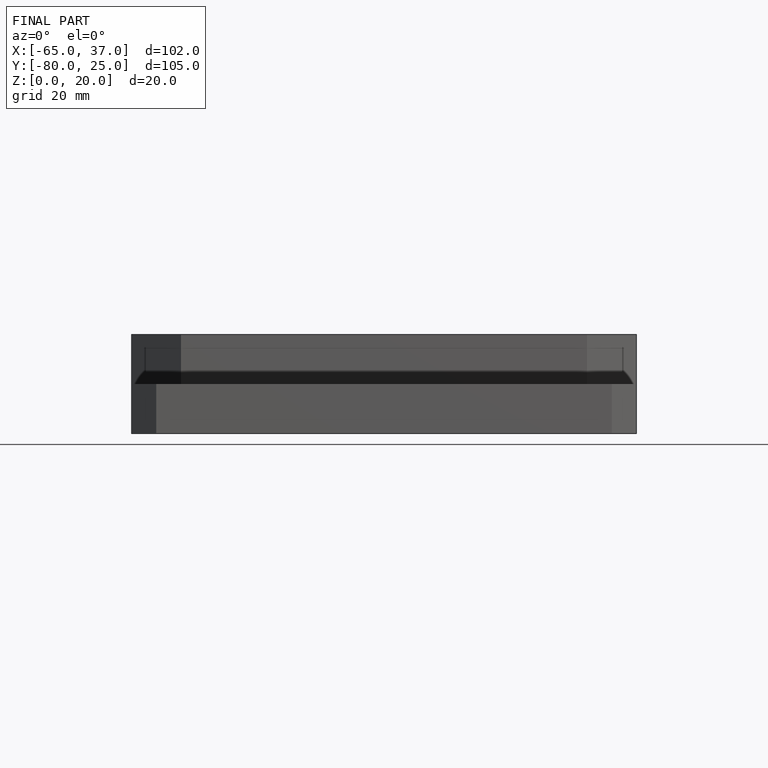
[diagram: finished part — front view with bounding-box wireframe]
